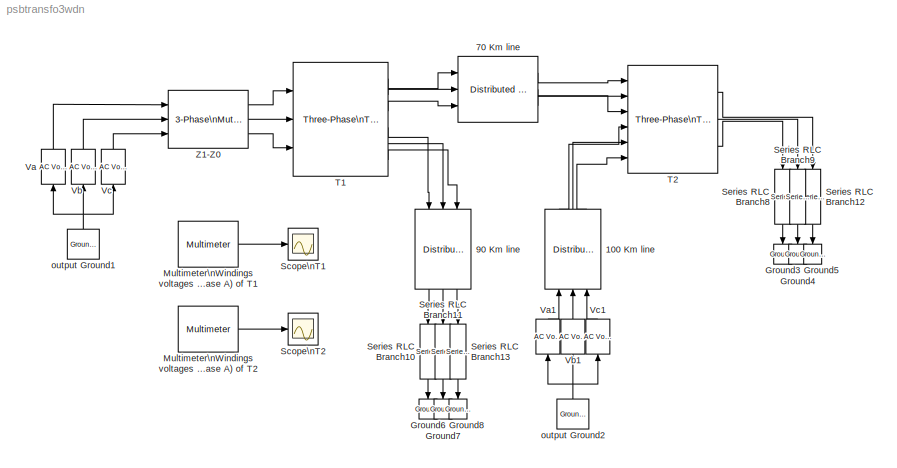
MODEL psbtransfo3wdn
KIND model
CONFIG InitFcn = powericon('psbinitsys',bdroot);
BLOCK [Reference] 100 Km line  REF=powerlib2/Elements/Distributed Parameters Line
  PSBOutputType = 111111111111111111111111111111
  Ports = [3, 3]
  SourceBlock = powerlib2/Elements/Distributed Parameters Line
  SourceType = Distributed Parameters Line
  Tag = PoWeRsYsTeMbLoCk
  c = [12.02e-9   7.47e-9]
  f = 60
  l = [0.0009536  .0034]
  lgt = 100
  mesure = None
  n = 3
  r = [0.045 0.383]
  x1 = [0 0.7635 6.552e+04 -3.356e+05;0.0004716 0.2984 1.238e+05 -3.187e+05;0.0009433 -0.1761 1.782e+05 -2.918e+05;0.001415 -0.645 2.27e+05 -2.556e+05;0.001887 -1.094 2.687e+05 -2.114e+05;0.002358 -1.508 3.018e+05 -1.606e+05]  <repeated x3 — deduplicated; at blocks: 100 Km line, 70 Km line, 90 Km  line>
  x2 = [0 1.583 2.165e+04 -3.402e+05;0.0004716 0.789 8.149e+04 -3.31e+05;0.0009433 -0.02989 1.388e+05 -3.114e+05;0.001415 -0.8479 1.916e+05 -2.82e+05;0.001887 -1.639 2.385e+05 -2.436e+05;0.002358 -2.379 2.778e+05 -1.976e+05]  <repeated x3 — deduplicated; at blocks: 100 Km line, 70 Km line, 90 Km  line>
  x3 = [0 0.02395 -235.2 649.9;0.0004716 0.02363 -346.5 598;0.0009433 0.02255 -446.8 527.3;0.001415 0.02077 -533 440;0.001887 0.01833 -602.4 338.8;0.002358 0.01531 -652.8 226.9]
  x4 = [0 -0.01995 443.3 -3029;0.0004716 -0.02141 972 -2902;0.0009433 -0.02221 1470 -2685;0.001415 -0.0223 1922 -2382;0.001887 -0.02169 2313 -2005;0.002358 -0.02039 2631 -1564]
  x5 = 0.002358
BLOCK [Reference] 70 Km line  REF=powerlib2/Elements/Distributed Parameters Line
  PSBOutputType = 111111111111111111111111111111
  Ports = [3, 3]
  SourceBlock = powerlib2/Elements/Distributed Parameters Line
  SourceType = Distributed Parameters Line
  Tag = PoWeRsYsTeMbLoCk
  c = [12.02e-9   7.47e-9]
  f = 60
  l = [0.0009536  .0034]
  lgt = 70
  mesure = None
  n = 3
  r = [0.045 0.383]
  x3 = [0 0.02395 -235.2 649.9;0.0004716 0.02363 -346.5 598;0.0009433 0.02255 -446.8 527.3;0.001415 0.02077 -533 440;0.001887 0.01833 -602.4 338.8;0.002358 0.01531 -652.8 226.9]
  x4 = [0 -0.01995 443.3 -3029;0.0004716 -0.02141 972 -2902;0.0009433 -0.02221 1470 -2685;0.001415 -0.0223 1922 -2382;0.001887 -0.02169 2313 -2005;0.002358 -0.02039 2631 -1564]
  x5 = 0.002358
BLOCK [Reference] 90 Km  line  REF=powerlib2/Elements/Distributed Parameters Line
  PSBOutputType = 111111111111111111111111111111
  Ports = [3, 3]
  SourceBlock = powerlib2/Elements/Distributed Parameters Line
  SourceType = Distributed Parameters Line
  Tag = PoWeRsYsTeMbLoCk
  c = [12.02e-9   7.47e-9]
  f = 60
  l = [0.0009536  .0034]
  lgt = 90
  mesure = None
  n = 3
  r = [0.045 0.383]
  x3 = [0 0.02395 -235.2 649.9;0.0004716 0.02363 -346.5 598;0.0009433 0.02255 -446.8 527.3;0.001415 0.02077 -533 440;0.001887 0.01833 -602.4 338.8;0.002358 0.01531 -652.8 226.9]
  x4 = [0 -0.01995 443.3 -3029;0.0004716 -0.02141 972 -2902;0.0009433 -0.02221 1470 -2685;0.001415 -0.0223 1922 -2382;0.001887 -0.02169 2313 -2005;0.002358 -0.02039 2631 -1564]
  x5 = 0.002358
BLOCK [Reference] Ground3  REF=powerlib2/Connectors/Ground (input)
  Ports = [1]
  SourceBlock = powerlib2/Connectors/Ground (input)
  SourceType = Ground
  Tag = PoWeRsYsTeMbLoCk
BLOCK [Reference] Ground4  REF=powerlib2/Connectors/Ground (input)
  Ports = [1]
  SourceBlock = powerlib2/Connectors/Ground (input)
  SourceType = Ground
  Tag = PoWeRsYsTeMbLoCk
BLOCK [Reference] Ground5  REF=powerlib2/Connectors/Ground (input)
  Ports = [1]
  SourceBlock = powerlib2/Connectors/Ground (input)
  SourceType = Ground
  Tag = PoWeRsYsTeMbLoCk
BLOCK [Reference] Ground6  REF=powerlib2/Connectors/Ground (input)
  Ports = [1]
  SourceBlock = powerlib2/Connectors/Ground (input)
  SourceType = Ground
  Tag = PoWeRsYsTeMbLoCk
BLOCK [Reference] Ground7  REF=powerlib2/Connectors/Ground (input)
  Ports = [1]
  SourceBlock = powerlib2/Connectors/Ground (input)
  SourceType = Ground
  Tag = PoWeRsYsTeMbLoCk
BLOCK [Reference] Ground8  REF=powerlib2/Connectors/Ground (input)
  Ports = [1]
  SourceBlock = powerlib2/Connectors/Ground (input)
  SourceType = Ground
  Tag = PoWeRsYsTeMbLoCk
BLOCK [Reference] Multimeter\nWindings voltages (phase A) of T1  REF=powerlib2/Measurements/Multimeter
  AxesSetting = [0,0.1,-100,100]
  Display = 0
  Gain = [1 1 1]
  L = 18
  OutputType = Magnitude
  PSBOutputType = 1
  PSBequivalent = 0
  PhasorSimulation = off
  Ports = [0, 1]
  SavedBlockNames = {}
  SourceBlock = powerlib2/Measurements/Multimeter
  SourceType = MultimeterPSB
  Tag = PoWeRsYsTeMmEaSuReMeNt
  sel = [1 4 7]
  yselected = [511,8.4485067260742188e+004;512,8.4485067260742188e+004;313,8.4485067260742188e+004]
BLOCK [Reference] Multimeter\nWindings voltages (phase A) of T2  REF=powerlib2/Measurements/Multimeter
  AxesSetting = [0,0.1,-100,100]
  Display = 0
  Gain = [1 1 1]
  L = 18
  OutputType = Magnitude
  PSBOutputType = 1
  PSBequivalent = 0
  PhasorSimulation = off
  Ports = [0, 1]
  SavedBlockNames = {}
  SourceBlock = powerlib2/Measurements/Multimeter
  SourceType = MultimeterPSB
  Tag = PoWeRsYsTeMmEaSuReMeNt
  sel = [10 13 16]
  yselected = [411,8.4486067260742188e+004;412,8.4486067260742188e+004;313,8.4486067260742188e+004]
BLOCK [Scope] Scope\nT1
  DataFormat = StructureWithTime
  NumInputPorts = 1
  Ports = [1]
  TimeRange = 0.1
  YMax = 400000
  YMin = -400000
BLOCK [Scope] Scope\nT2
  DataFormat = StructureWithTime
  NumInputPorts = 1
  Ports = [1]
  TimeRange = 0.1
  YMax = 1000000
  YMin = -1000000
BLOCK [Reference] Series RLC Branch10  REF=powerlib2/Elements/Series RLC Branch
  PSBOutputType = 1
  Ports = [1, 1]
  SourceBlock = powerlib2/Elements/Series RLC Branch
  SourceType = Series RLC Branch
  Tag = PoWeRsYsTeMbLoCk
  a = 5.7
  b = 6.03
  c = inf
  mesure = None
BLOCK [Reference] Series RLC Branch11  REF=powerlib2/Elements/Series RLC Branch
  PSBOutputType = 1
  Ports = [1, 1]
  SourceBlock = powerlib2/Elements/Series RLC Branch
  SourceType = Series RLC Branch
  Tag = PoWeRsYsTeMbLoCk
  a = 5.7
  b = 6.03
  c = inf
  mesure = None
BLOCK [Reference] Series RLC Branch12  REF=powerlib2/Elements/Series RLC Branch
  PSBOutputType = 1
  Ports = [1, 1]
  SourceBlock = powerlib2/Elements/Series RLC Branch
  SourceType = Series RLC Branch
  Tag = PoWeRsYsTeMbLoCk
  a = 5.7
  b = 6.03
  c = inf
  mesure = None
BLOCK [Reference] Series RLC Branch13  REF=powerlib2/Elements/Series RLC Branch
  PSBOutputType = 1
  Ports = [1, 1]
  SourceBlock = powerlib2/Elements/Series RLC Branch
  SourceType = Series RLC Branch
  Tag = PoWeRsYsTeMbLoCk
  a = 5.7
  b = 6.03
  c = inf
  mesure = None
BLOCK [Reference] Series RLC Branch8  REF=powerlib2/Elements/Series RLC Branch
  PSBOutputType = 1
  Ports = [1, 1]
  SourceBlock = powerlib2/Elements/Series RLC Branch
  SourceType = Series RLC Branch
  Tag = PoWeRsYsTeMbLoCk
  a = 5.7
  b = 6.03
  c = inf
  mesure = None
BLOCK [Reference] Series RLC Branch9  REF=powerlib2/Elements/Series RLC Branch
  PSBOutputType = 1
  Ports = [1, 1]
  SourceBlock = powerlib2/Elements/Series RLC Branch
  SourceType = Series RLC Branch
  Tag = PoWeRsYsTeMbLoCk
  a = 5.7
  b = 6.03
  c = inf
  mesure = None
BLOCK [Reference] T1  REF=powerlib2/Elements/Three-Phase\nTransformer\n(Three Windings)
  PSBOutputType = 1111111
  Ports = [3, 6]
  SourceBlock = powerlib2/Elements/Three-Phase\nTransformer\n(Three Windings)
  SourceType = Three-Phase Transformer (Three Windings)
  Tag = PoWeRsYsTeMbLoCk
  confi = ABC as input terminals
  hyst = off
  ifl = [0.8 -0.8 0.7]
  initialslopes = [+1 +1 +1]
  lm = 500
  matfile = 'hysteresis'
  mesure = Winding voltages
  nom = [ 250e6 , 60 ]
  rmag = 500
  sat = [ 0,0  ;  0.005,1.2  ;  1.0,1.4]
  sif = off
  w1 = [ 735e3 , 0.002 , 0.08 ]
  w2 = [ 315e3 , 0.002 , 0.08 ]
  w3 = [ 315e3 , 0.002 , 0.08 ]
  ydw1 = Yg
  ydw2 = Yg
  ydw3 = Delta (D1)
  ynsat = off
BLOCK [Reference] T2  REF=powerlib2/Elements/Three-Phase\nTransformer\n(Three Windings)
  PSBOutputType = 1111111
  Ports = [6, 3]
  SourceBlock = powerlib2/Elements/Three-Phase\nTransformer\n(Three Windings)
  SourceType = Three-Phase Transformer (Three Windings)
  Tag = PoWeRsYsTeMbLoCk
  confi = ABC as output terminals
  hyst = off
  ifl = [0.8 -0.8 0.7]
  initialslopes = [+1 +1 +1]
  lm = 500
  matfile = 'hysteresis'
  mesure = Winding voltages
  nom = [ 250e6 , 60 ]
  rmag = 500
  sat = [ 0,0  ;  0.005,1.2  ;  1.0,1.4]
  sif = off
  w1 = [ 735e3 , 0.002 , 0.08 ]
  w2 = [ 315e3 , 0.002 , 0.08 ]
  w3 = [ 315e3 , 0.002 , 0.08 ]
  ydw1 = Y
  ydw2 = Y
  ydw3 = Delta (D1)
  ynsat = off
BLOCK [Reference] Va  REF=powerlib2/Electrical\nSources/AC Voltage Source
  A = 315e3
  F = 60
  P = -65.4
  PSBOutputType = 1
  Ports = [1, 1]
  SourceBlock = powerlib2/Electrical\nSources/AC Voltage Source
  SourceType = AC Voltage Source
  Tag = PoWeRsYsTeMbLoCk
  mesure = None
  stime = 0
BLOCK [Reference] Va1  REF=powerlib2/Electrical\nSources/AC Voltage Source
  A = 479690
  F = 60
  P = 0
  PSBOutputType = 1
  Ports = [1, 1]
  SourceBlock = powerlib2/Electrical\nSources/AC Voltage Source
  SourceType = AC Voltage Source
  Tag = PoWeRsYsTeMbLoCk
  mesure = None
  stime = 0
BLOCK [Reference] Vb  REF=powerlib2/Electrical\nSources/AC Voltage Source
  A = 315e3
  F = 60
  P = -65.4-120
  PSBOutputType = 1
  Ports = [1, 1]
  SourceBlock = powerlib2/Electrical\nSources/AC Voltage Source
  SourceType = AC Voltage Source
  Tag = PoWeRsYsTeMbLoCk
  mesure = None
  stime = 0
BLOCK [Reference] Vb1  REF=powerlib2/Electrical\nSources/AC Voltage Source
  A = 470000
  F = 60
  P = -120
  PSBOutputType = 1
  Ports = [1, 1]
  SourceBlock = powerlib2/Electrical\nSources/AC Voltage Source
  SourceType = AC Voltage Source
  Tag = PoWeRsYsTeMbLoCk
  mesure = None
  stime = 0
BLOCK [Reference] Vc  REF=powerlib2/Electrical\nSources/AC Voltage Source
  A = 479690
  F = 60
  P = -65.4+120
  PSBOutputType = 1
  Ports = [1, 1]
  SourceBlock = powerlib2/Electrical\nSources/AC Voltage Source
  SourceType = AC Voltage Source
  Tag = PoWeRsYsTeMbLoCk
  mesure = None
  stime = 0
BLOCK [Reference] Vc1  REF=powerlib2/Electrical\nSources/AC Voltage Source
  A = 470000
  F = 60
  P = +120
  PSBOutputType = 1
  Ports = [1, 1]
  SourceBlock = powerlib2/Electrical\nSources/AC Voltage Source
  SourceType = AC Voltage Source
  Tag = PoWeRsYsTeMbLoCk
  mesure = None
  stime = 0
BLOCK [Reference] Z1-Z0  REF=powerlib2/Elements/3-Phase\nMutual Inductance\nZ1-Z0
  Ports = [3, 3]
  RL0 = [4  100e-3]
  RL1 = [ 2  50e-3]
  SourceBlock = powerlib2/Elements/3-Phase\nMutual Inductance\nZ1-Z0
  SourceType = 3-phase RL  positive & zero-sequence impedance
BLOCK [Reference] output Ground1  REF=powerlib2/Connectors/Ground (output)
  PSBOutputType = 1
  Ports = [0, 1]
  SourceBlock = powerlib2/Connectors/Ground (output)
  SourceType = Ground
  Tag = PoWeRsYsTeMbLoCk
BLOCK [Reference] output Ground2  REF=powerlib2/Connectors/Ground (output)
  PSBOutputType = 1
  Ports = [0, 1]
  SourceBlock = powerlib2/Connectors/Ground (output)
  SourceType = Ground
  Tag = PoWeRsYsTeMbLoCk
LINE 100 Km line:1 -> T2:4
LINE 100 Km line:2 -> T2:5
LINE 100 Km line:3 -> T2:6
LINE 70 Km line:1 -> T2:1
LINE 70 Km line:2 -> T2:2
LINE 70 Km line:3 -> T2:3
LINE 90 Km  line:1 -> Series RLC Branch10:1
LINE 90 Km  line:2 -> Series RLC Branch11:1
LINE 90 Km  line:3 -> Series RLC Branch13:1
LINE Multimeter\nWindings voltages (phase A) of T1:1 -> Scope\nT1:1
LINE Multimeter\nWindings voltages (phase A) of T2:1 -> Scope\nT2:1
LINE Series RLC Branch10:1 -> Ground6:1
LINE Series RLC Branch11:1 -> Ground7:1
LINE Series RLC Branch12:1 -> Ground5:1
LINE Series RLC Branch13:1 -> Ground8:1
LINE Series RLC Branch8:1 -> Ground3:1
LINE Series RLC Branch9:1 -> Ground4:1
LINE T1:1 -> 70 Km line:1
LINE T1:2 -> 70 Km line:2
LINE T1:3 -> 70 Km line:3
LINE T1:4 -> 90 Km  line:1
LINE T1:5 -> 90 Km  line:2
LINE T1:6 -> 90 Km  line:3
LINE T2:1 -> Series RLC Branch12:1
LINE T2:2 -> Series RLC Branch9:1
LINE T2:3 -> Series RLC Branch8:1
LINE Va1:1 -> 100 Km line:1
LINE Va:1 -> Z1-Z0:1
LINE Vb1:1 -> 100 Km line:2
LINE Vb:1 -> Z1-Z0:2
LINE Vc1:1 -> 100 Km line:3
LINE Vc:1 -> Z1-Z0:3
LINE Z1-Z0:1 -> T1:1
LINE Z1-Z0:2 -> T1:2
LINE Z1-Z0:3 -> T1:3
NET output Ground1:1 -> Va:1, Vb:1, Vc:1
NET output Ground2:1 -> Va1:1, Vb1:1, Vc1:1
note: NET lines group one-source signal fan-out (src -> all destinations, sorted); 1:1 wires keep LINE
